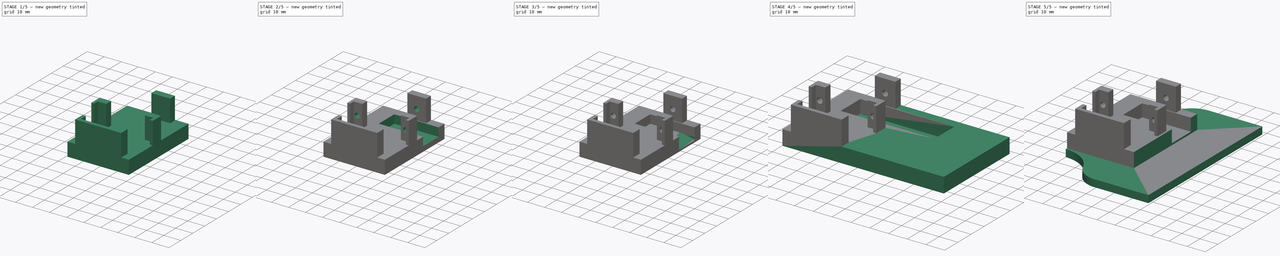
[diagram: build sequence overview — one tinted view per stage of 5, left to right]
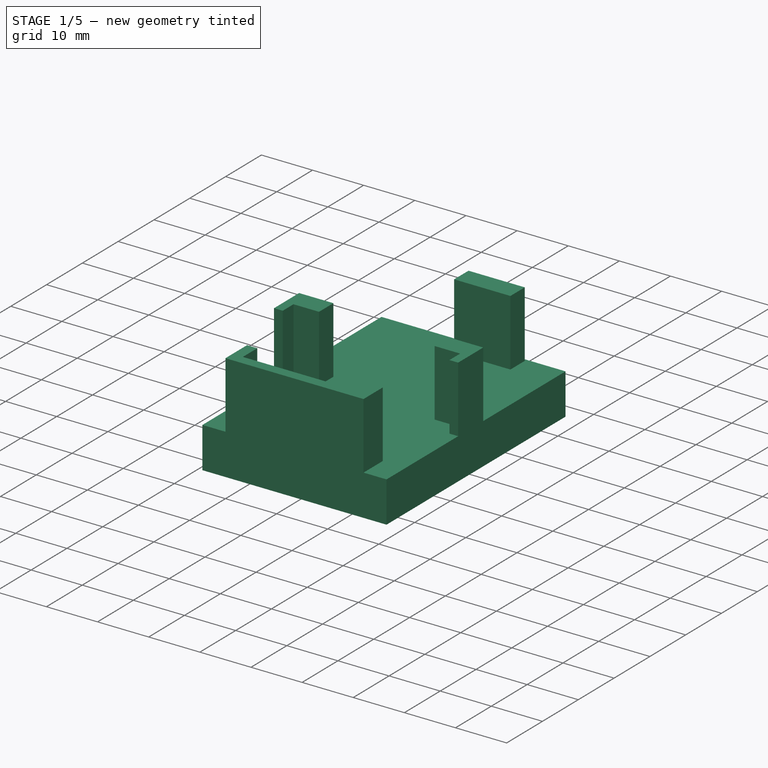
[diagram: stage 1 of 5 — iso view after this stage's code; geometry added in this stage tinted green]
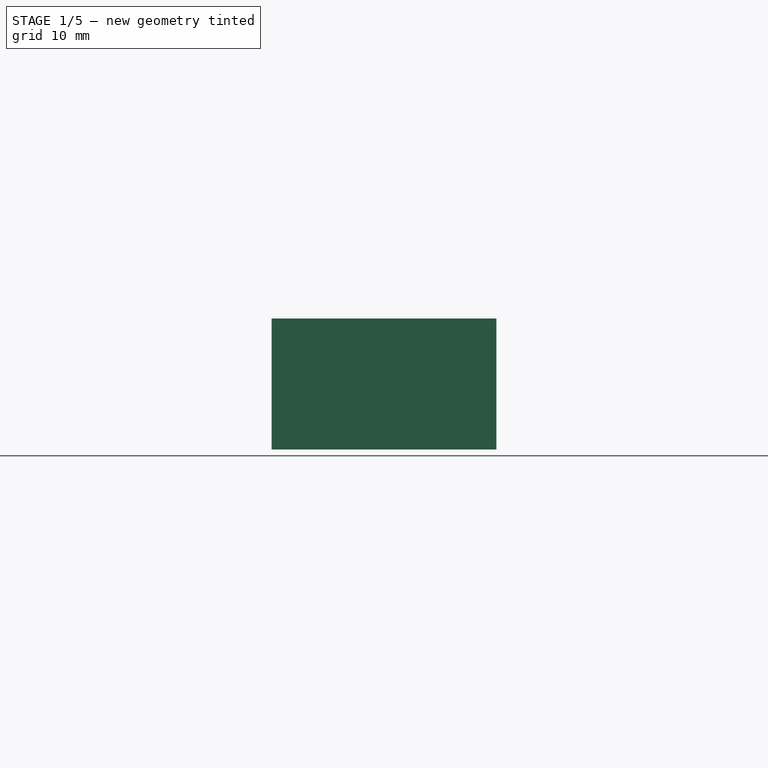
[diagram: stage 1 of 5 — front view after this stage's code; geometry added in this stage tinted green]
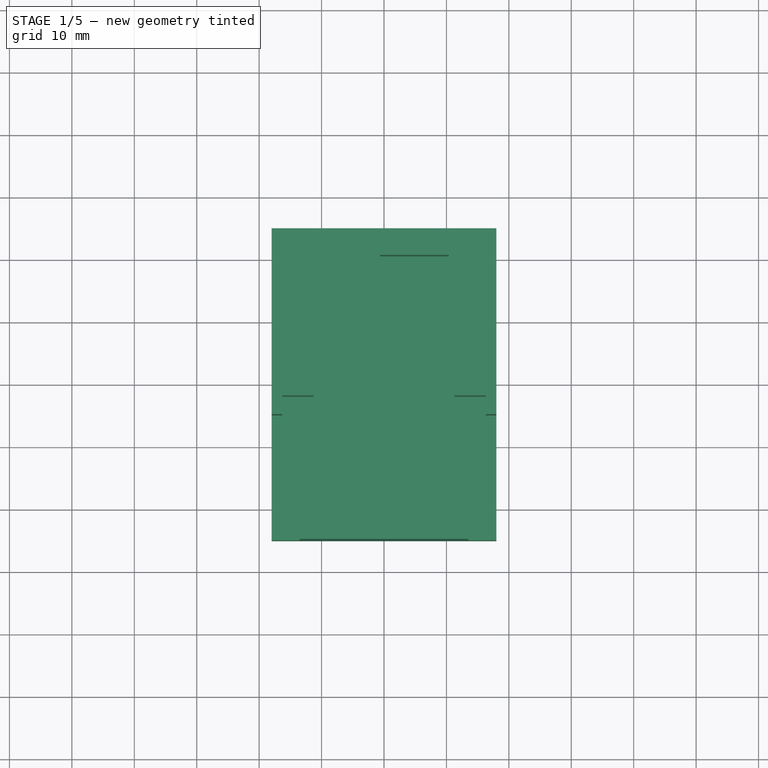
[diagram: stage 1 of 5 — top view after this stage's code; geometry added in this stage tinted green]
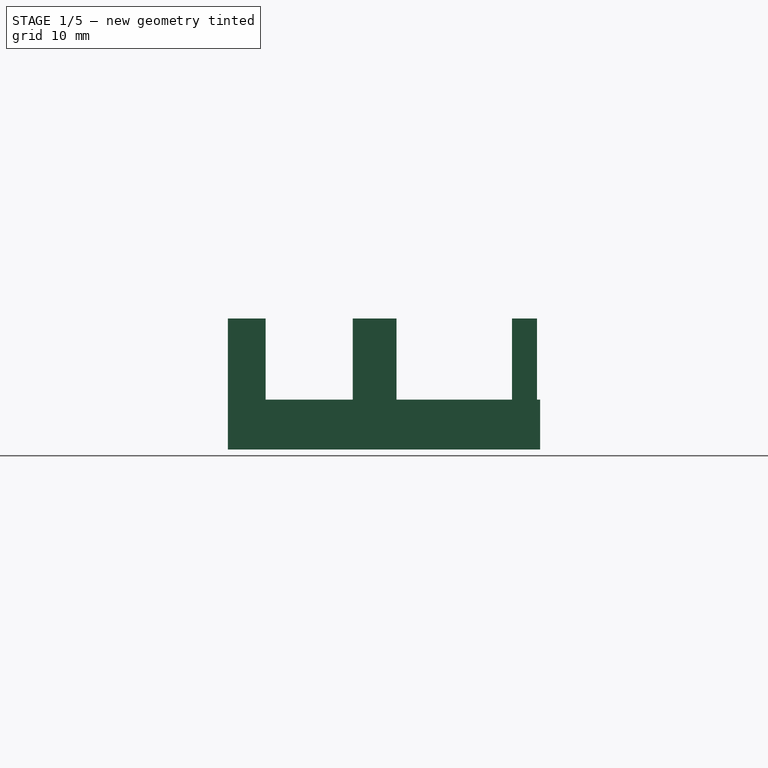
[diagram: stage 1 of 5 — right view after this stage's code; geometry added in this stage tinted green]
FCSTD DOCUMENT  (FreeCAD 0.16R6703 (Git))
Label: Platform
License: FreeArt
LicenseURL: http://artlibre.org/licence/lal
objects: Sketcher::SketchObject×13, PartDesign::Pocket×7, PartDesign::Pad×6, PartDesign::Chamfer×5, Part::Fuse×1, PartDesign::Fillet×1
note: 46 computed .brp shape members not serialized (recipe doc carries the construction recipe); baked Part::Feature solids carry a one-line shape summary decoded from their .brp

FEATURE [Sketcher::SketchObject] Sketch
  sketch-geometry (4):
    g0: LineSegment StartX=-18 StartY=25 StartZ=0 EndX=18 EndY=25 EndZ=0
    g1: LineSegment StartX=18 StartY=25 StartZ=0 EndX=18 EndY=-25 EndZ=0
    g2: LineSegment StartX=18 StartY=-25 StartZ=0 EndX=-18 EndY=-25 EndZ=0
    g3: LineSegment StartX=-18 StartY=-25 StartZ=0 EndX=-18 EndY=25 EndZ=0
  constraints (12):
    c: Coincident(g0,g1)
    c: Coincident(g1,g2)
    c: Coincident(g2,g3)
    c: Coincident(g3,g0)
    c: Horizontal(g0)
    c: Horizontal(g2)
    c: Vertical(g1)
    c: Vertical(g3)
    c: Symmetric(g2,g1,g-2)
    c: Symmetric(g0,g1,g-1)
    c: DistanceY(g1,g1) = 50
    c: DistanceX(g0,g0) = 36
FEATURE [PartDesign::Pad] Pad
  Length = 8
  Length2 = 100
  Sketch = -> Sketch
  Type = 0
FEATURE [Sketcher::SketchObject] Sketch002
  Placement = pos=(0,0,8) rot=(0,0,1;0rad)
  Support = -> Pad [Face6]
  sketch-geometry (8):
    g0: LineSegment StartX=-13.5 StartY=-25 StartZ=0 EndX=13.5 EndY=-25 EndZ=0
    g1: LineSegment StartX=13.5 StartY=-25 StartZ=0 EndX=13.5 EndY=-19.6295 EndZ=0
    g2: LineSegment StartX=13.5 StartY=-19.6295 StartZ=0 EndX=11.5 EndY=-19.6295 EndZ=0
    g3: LineSegment StartX=11.5 StartY=-19.6295 StartZ=0 EndX=11.5 EndY=-23 EndZ=0
    g4: LineSegment StartX=11.5 StartY=-23 StartZ=0 EndX=-11.5 EndY=-23 EndZ=0
    g5: LineSegment StartX=-11.5 StartY=-23 StartZ=0 EndX=-11.5 EndY=-18.9697 EndZ=0
    g6: LineSegment StartX=-11.5 StartY=-18.9697 StartZ=0 EndX=-13.5 EndY=-18.9697 EndZ=0
    g7: LineSegment StartX=-13.5 StartY=-18.9697 StartZ=0 EndX=-13.5 EndY=-25 EndZ=0
  constraints (22):
    c: Horizontal(g0)
    c: Coincident(g0,g1)
    c: Vertical(g1)
    c: Coincident(g1,g2)
    c: Coincident(g2,g3)
    c: Coincident(g3,g4)
    c: Horizontal(g4)
    c: Coincident(g4,g5)
    c: Vertical(g5)
    c: Coincident(g5,g6)
    c: Horizontal(g6)
    c: Coincident(g6,g7)
    c: Coincident(g7,g0)
    c: Vertical(g7)
    c: Vertical(g3)
    c: Symmetric(g0,g0,g-2)
    c: DistanceY(g-1,g0) = -25
    c: Horizontal(g2)
    c: DistanceX(g0,g0) = 27
    c: Equal(g6,g2)
    c: DistanceX(g2,g2) = 2
    c: Distance(g3,g0) = 2
FEATURE [PartDesign::Pad] Pad001
  Length = 13
  Length2 = 100
  Sketch = -> Sketch002
  Type = 0
FEATURE [Sketcher::SketchObject] Sketch003
  Placement = pos=(0,0,8) rot=(0,0,1;0rad)
  sketch-geometry (13):
    g0: LineSegment StartX=11.3 StartY=2 StartZ=0 EndX=18 EndY=2 EndZ=0
    g1: LineSegment StartX=18 StartY=2 StartZ=0 EndX=18 EndY=-5 EndZ=0
    g2: LineSegment StartX=18 StartY=-5 StartZ=0 EndX=16.3 EndY=-5 EndZ=0
    g3: LineSegment StartX=16.3 StartY=-5 StartZ=0 EndX=16.3 EndY=-2 EndZ=0
    g4: LineSegment StartX=16.3 StartY=-2 StartZ=0 EndX=11.3 EndY=-2 EndZ=0
    g5: LineSegment StartX=11.3 StartY=-2 StartZ=0 EndX=11.3 EndY=2 EndZ=0
    g6: LineSegment StartX=-11.3 StartY=2 StartZ=0 EndX=-18 EndY=2 EndZ=0
    g7: LineSegment StartX=-18 StartY=2 StartZ=0 EndX=-18 EndY=-5 EndZ=0
    g8: LineSegment StartX=-18 StartY=-5 StartZ=0 EndX=-16.3 EndY=-5 EndZ=0
    g9: LineSegment StartX=-16.3 StartY=-5 StartZ=0 EndX=-16.3 EndY=-2 EndZ=0
    g10: LineSegment StartX=-16.3 StartY=-2 StartZ=0 EndX=-11.3 EndY=-2 EndZ=0
    g11: LineSegment StartX=-11.3 StartY=-2 StartZ=0 EndX=-11.3 EndY=2 EndZ=0
    g12: LineSegment [constr] StartX=-21.0254 StartY=-25 StartZ=0 EndX=21.0254 EndY=-25 EndZ=0
  constraints (39):
    c: Horizontal(g0)
    c: Coincident(g0,g1)
    c: Vertical(g1)
    c: Coincident(g1,g2)
    c: Coincident(g2,g3)
    c: Vertical(g3)
    c: Coincident(g3,g4)
    c: Coincident(g4,g5)
    c: Vertical(g5)
    c: Coincident(g5,g0)
    c: Horizontal(g6)
    c: Coincident(g6,g7)
    c: Vertical(g7)
    c: Coincident(g7,g8)
    c: Coincident(g8,g9)
    c: Vertical(g9)
    c: Coincident(g9,g10)
    c: Coincident(g10,g11)
    c: Coincident(g11,g6)
    c: Vertical(g11)
    c: Horizontal(g12)
    c: DistanceY(g-1,g12) = -25
    c: Horizontal(g2)
    c: Horizontal(g4)
    c: Horizontal(g8)
    c: Horizontal(g10)
    c: Distance(g4,g12) = 23
    c: Distance(g10,g12) = 23
    c: Symmetric(g6,g0,g-2)
    c: Symmetric(g8,g2,g-2)
    c: Equal(g6,g0)
    c: Equal(g1,g7)
    c: Equal(g8,g2)
    c: Distance(g8,g2) = 32.6
    c: DistanceX(g0,g0) = 6.7
    c: DistanceY(g1,g1) = 7
    c: DistanceX(g10,g10) = 5
    c: DistanceY(g11,g11) = 4
    c: Distance(g6,g0) = 22.6
FEATURE [PartDesign::Pad] Pad002
  Length = 13
  Length2 = 100
  Placement = pos=(0,0,8) rot=(0,0,1;0rad)
  Sketch = -> Sketch003
  Type = 0
FEATURE [Sketcher::SketchObject] Sketch004
  Placement = pos=(0,0,8) rot=(0,0,1;0rad)
  Support = -> Pad001 [Face5]
  sketch-geometry (5):
    g0: LineSegment StartX=-0.6348 StartY=20.5 StartZ=0 EndX=10.3652 EndY=20.5 EndZ=0
    g1: LineSegment StartX=10.3652 StartY=20.5 StartZ=0 EndX=10.3652 EndY=24.5 EndZ=0
    g2: LineSegment StartX=10.3652 StartY=24.5 StartZ=0 EndX=-0.6348 EndY=24.5 EndZ=0
    g3: LineSegment StartX=-0.6348 StartY=24.5 StartZ=0 EndX=-0.6348 EndY=20.5 EndZ=0
    g4: LineSegment [constr] StartX=10.3652 StartY=0 StartZ=0 EndX=10.3652 EndY=24.9002 EndZ=0
  constraints (17):
    c: Coincident(g0,g1)
    c: Coincident(g1,g2)
    c: Coincident(g2,g3)
    c: Coincident(g3,g0)
    c: Horizontal(g0)
    c: Horizontal(g2)
    c: Vertical(g1)
    c: Vertical(g3)
    c: Equal(g3,g1)
    c: Equal(g0,g2)
    c: DistanceY(g-1,g0) = 20.5
    c: DistanceY(g1,g1) = 4
    c: PointOnObject(g4,g-1)
    c: Vertical(g4)
    c: DistanceX(g-2,g4) = 10.3652
    c: PointOnObject(g0,g4)
    c: DistanceX(g0,g0) = 11
FEATURE [PartDesign::Pad] Pad003
  Length = 13
  Length2 = 100
  Sketch = -> Sketch004
  Type = 0
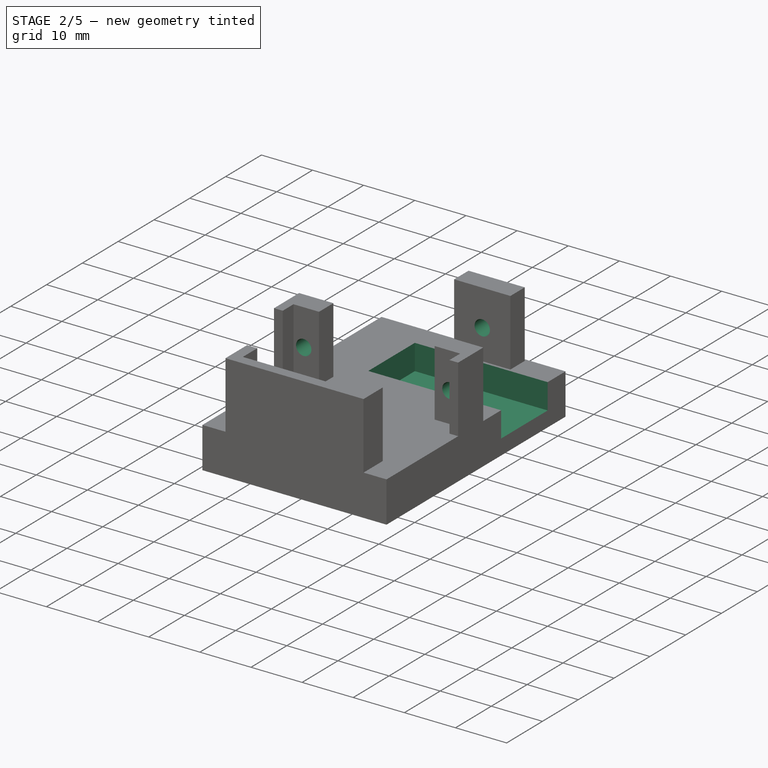
[diagram: stage 2 of 5 — iso view after this stage's code; geometry added in this stage tinted green]
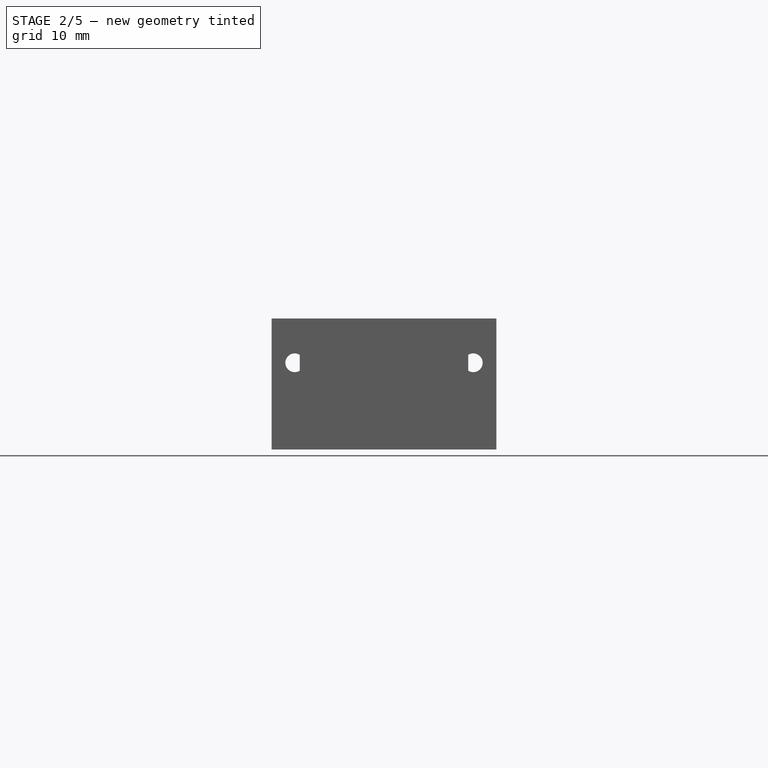
[diagram: stage 2 of 5 — front view after this stage's code; geometry added in this stage tinted green]
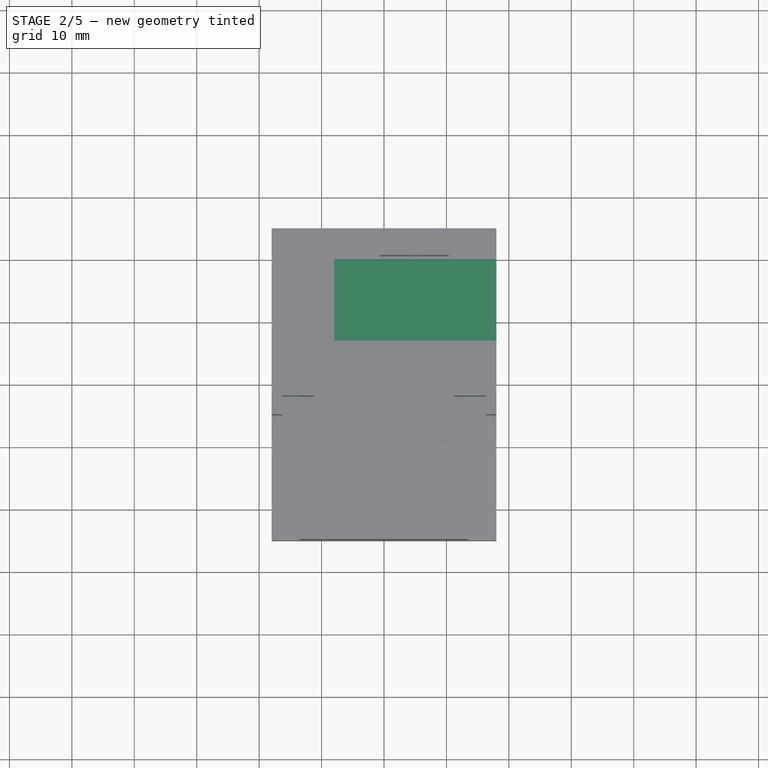
[diagram: stage 2 of 5 — top view after this stage's code; geometry added in this stage tinted green]
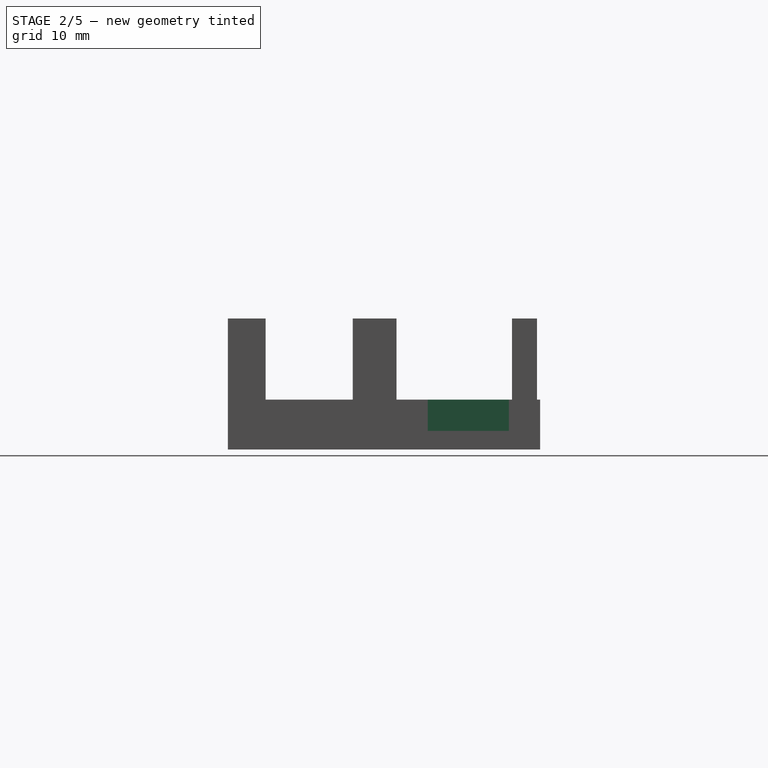
[diagram: stage 2 of 5 — right view after this stage's code; geometry added in this stage tinted green]
FEATURE [Part::Fuse] Fusion
  Base = -> Pad002
  Tool = -> Pad003
FEATURE [Sketcher::SketchObject] Sketch005
  Placement = pos=(0,0,8) rot=(0,0,1;0rad)
  Support = -> Fusion [Face3]
  sketch-geometry (4):
    g0: LineSegment StartX=-7.97752 StartY=20 StartZ=0 EndX=18 EndY=20 EndZ=0
    g1: LineSegment StartX=18 StartY=20 StartZ=0 EndX=18 EndY=7 EndZ=0
    g2: LineSegment StartX=18 StartY=7 StartZ=0 EndX=-7.97752 EndY=7 EndZ=0
    g3: LineSegment StartX=-7.97752 StartY=7 StartZ=0 EndX=-7.97752 EndY=20 EndZ=0
  constraints (13):
    c: Coincident(g0,g1)
    c: Coincident(g1,g2)
    c: Coincident(g2,g3)
    c: Coincident(g3,g0)
    c: Horizontal(g0)
    c: Horizontal(g2)
    c: Vertical(g1)
    c: Vertical(g3)
    c: Equal(g1,g3)
    c: Equal(g0,g2)
    c: DistanceY(g-1,g1) = 7
    c: Distance(g1) = 13
    c: DistanceX(g-2,g1) = 18
FEATURE [PartDesign::Pocket] Pocket
  Length = 5
  Sketch = -> Sketch005
  Type = 0
FEATURE [Sketcher::SketchObject] Sketch006
  Placement = pos=(0,2,0) rot=(0,0.707107,0.707107;3.14159rad)
  Support = -> Pocket [Face13]
  sketch-geometry (2):
    g0: Circle CenterX=-14.3 CenterY=13.9 CenterZ=0 NormalX=0 NormalY=0 NormalZ=1 Radius=1.5
    g1: Circle CenterX=14.3 CenterY=13.9 CenterZ=0 NormalX=0 NormalY=0 NormalZ=1 Radius=1.5
  constraints (6):
    c: Radius(g0) = 1.5
    c: Radius(g1) = 1.5
    c: DistanceX(g-2,g0) = -14.3
    c: DistanceX(g-2,g1) = 14.3
    c: DistanceY(g-1,g0) = 13.9
    c: DistanceY(g-1,g1) = 13.9
FEATURE [PartDesign::Pocket] Pocket001
  Length = 5
  Sketch = -> Sketch006
  Type = 0
FEATURE [Sketcher::SketchObject] Sketch007
  Placement = pos=(0,24.5,0) rot=(0,0.707107,0.707107;3.14159rad)
  Support = -> Pocket001 [Face31]
  sketch-geometry (2):
    g0: Circle CenterX=-4.85452 CenterY=13.9 CenterZ=0 NormalX=0 NormalY=0 NormalZ=1 Radius=1.5
    g1: GeomPoint [constr] X=-13.8539 Y=13.794 Z=0
  constraints (3):
    c: Radius(g0) = 1.5
    c: DistanceY(g-1,g0) = 13.9
    c: Distance(g1,g0) = 9
FEATURE [PartDesign::Pocket] Pocket002
  Length = 5
  Sketch = -> Sketch007
  Type = 0
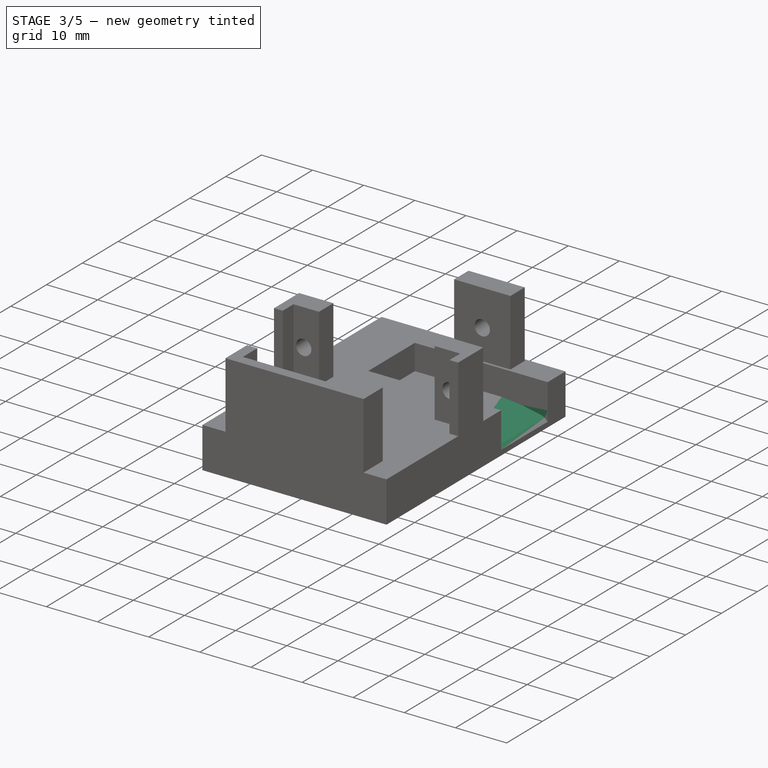
[diagram: stage 3 of 5 — iso view after this stage's code; geometry added in this stage tinted green]
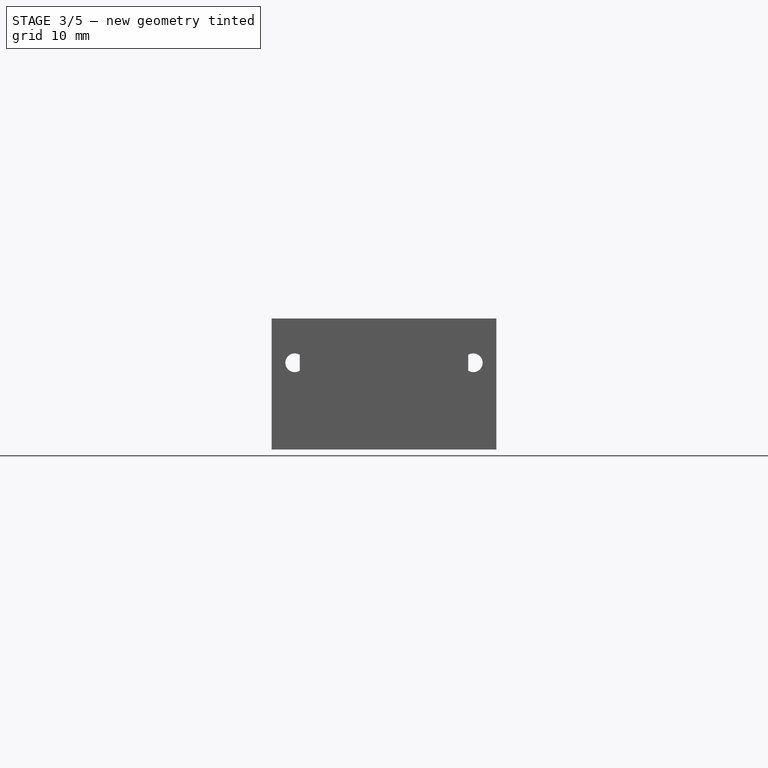
[diagram: stage 3 of 5 — front view after this stage's code; geometry added in this stage tinted green]
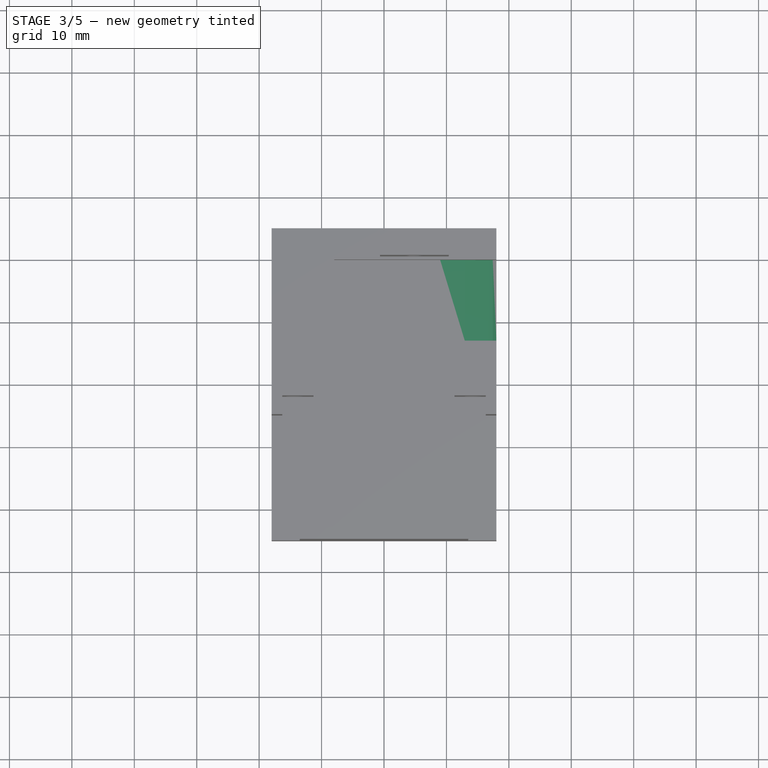
[diagram: stage 3 of 5 — top view after this stage's code; geometry added in this stage tinted green]
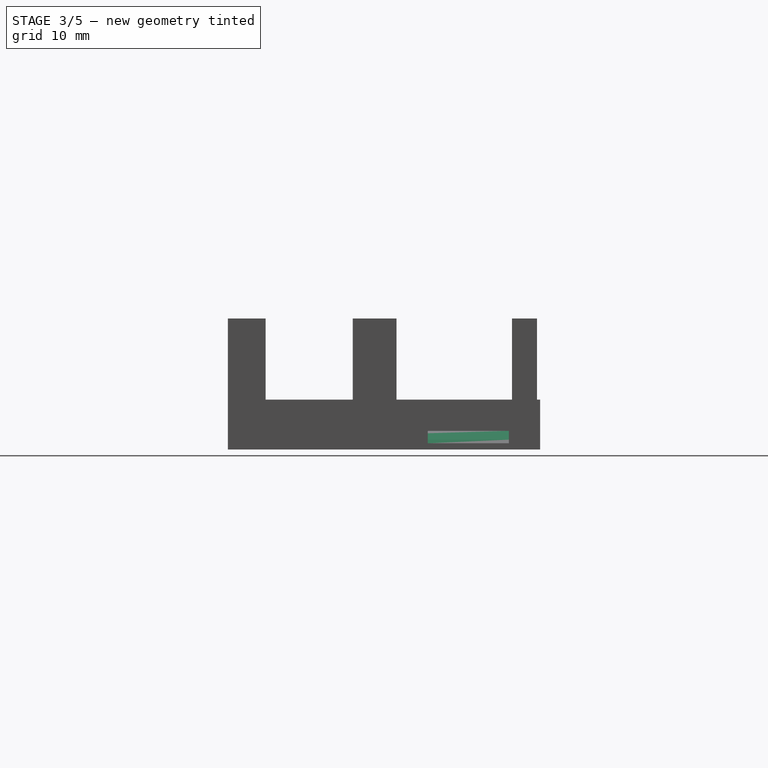
[diagram: stage 3 of 5 — right view after this stage's code; geometry added in this stage tinted green]
FEATURE [PartDesign::Chamfer] Chamfer
  Base = -> Pocket002 [Edge14]
  Size = 2
FEATURE [PartDesign::Chamfer] Chamfer001
  Base = -> Chamfer [Edge19]
  Size = 2
FEATURE [PartDesign::Chamfer] Chamfer002
  Base = -> Chamfer001 [Edge8]
  Size = 3
FEATURE [PartDesign::Chamfer] Chamfer003
  Base = -> Chamfer002 [Edge9]
  Size = 2
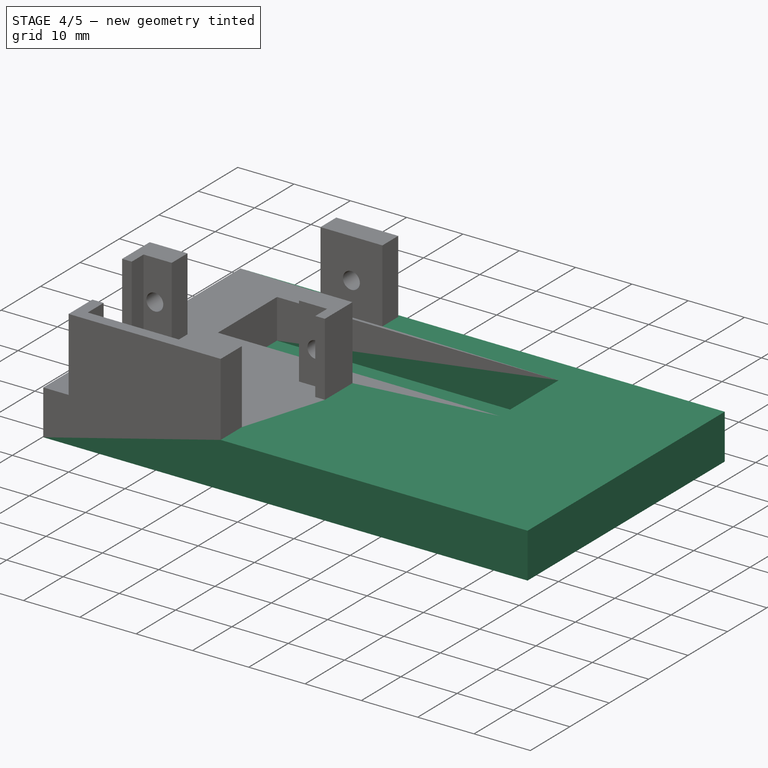
[diagram: stage 4 of 5 — iso view after this stage's code; geometry added in this stage tinted green]
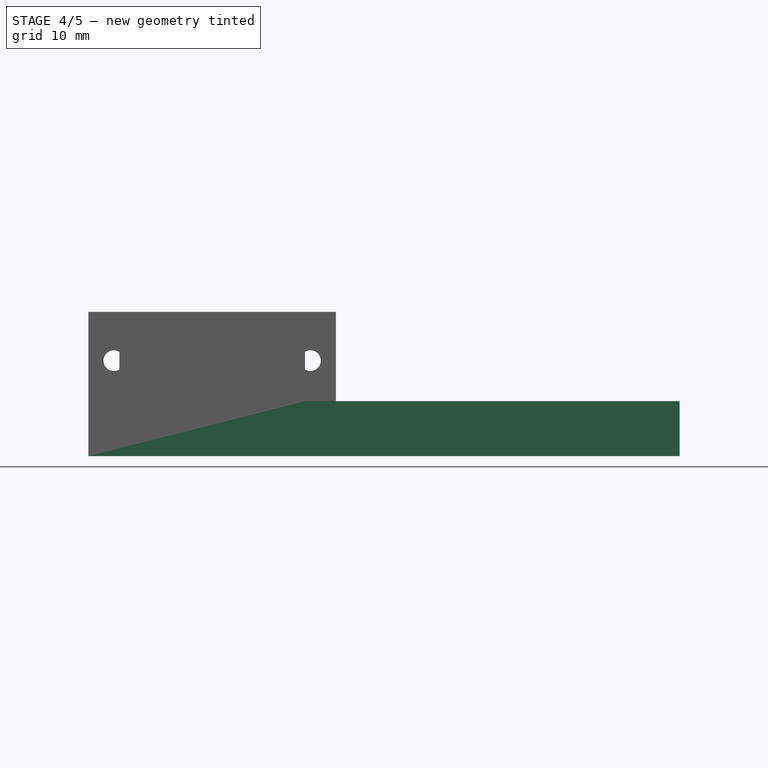
[diagram: stage 4 of 5 — front view after this stage's code; geometry added in this stage tinted green]
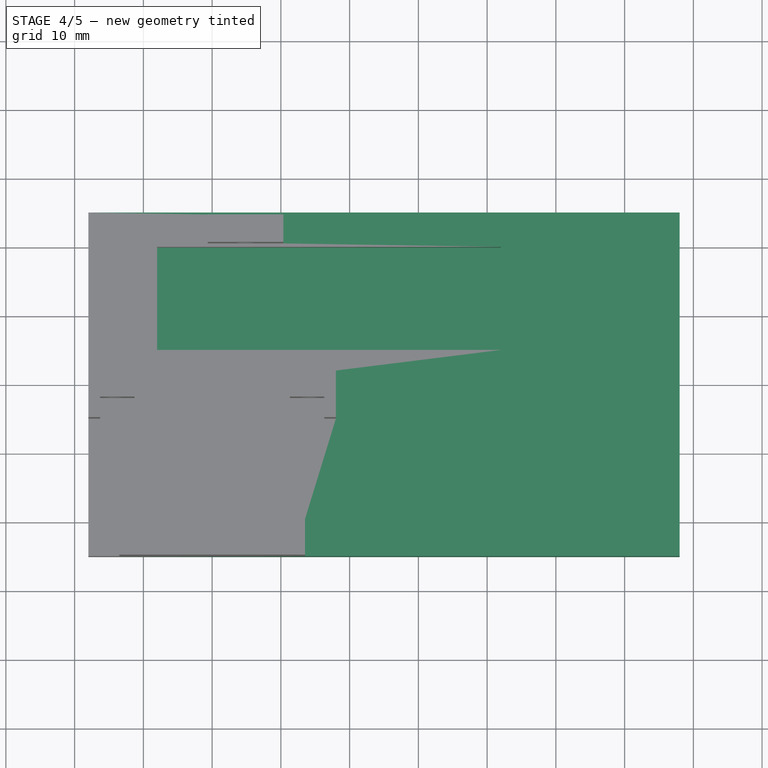
[diagram: stage 4 of 5 — top view after this stage's code; geometry added in this stage tinted green]
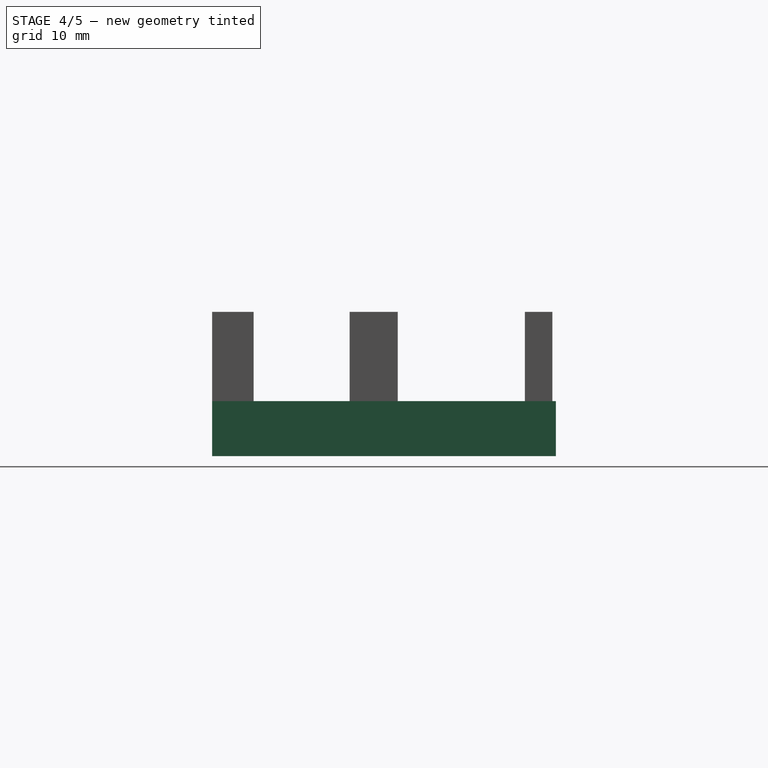
[diagram: stage 4 of 5 — right view after this stage's code; geometry added in this stage tinted green]
FEATURE [Sketcher::SketchObject] Sketch008
  Placement = pos=(0,0,3) rot=(0,0,1;0rad)
  Support = -> Chamfer003 [Face2]
  sketch-geometry (4):
    g0: LineSegment StartX=-4.4342 StartY=20 StartZ=0 EndX=18.7767 EndY=20 EndZ=0
    g1: LineSegment StartX=18.7767 StartY=20 StartZ=0 EndX=18.7767 EndY=7 EndZ=0
    g2: LineSegment StartX=18.7767 StartY=7 StartZ=0 EndX=-4.4342 EndY=7 EndZ=0
    g3: LineSegment StartX=-4.4342 StartY=7 StartZ=0 EndX=-4.4342 EndY=20 EndZ=0
  constraints (10):
    c: Coincident(g0,g1)
    c: Coincident(g1,g2)
    c: Coincident(g2,g3)
    c: Coincident(g3,g0)
    c: Horizontal(g0)
    c: Horizontal(g2)
    c: Vertical(g1)
    c: Vertical(g3)
    c: DistanceY(g-1,g1) = 7
    c: DistanceY(g1,g1) = 13
FEATURE [PartDesign::Pocket] Pocket003
  Length = 2
  Sketch = -> Sketch008
  Type = 0
FEATURE [PartDesign::Chamfer] Chamfer004
  Base = -> Pocket003 [Edge46]
  Size = 1
FEATURE [Sketcher::SketchObject] Sketch009
  Placement = pos=(18,0,0) rot=(0.57735,0.57735,0.57735;2.0944rad)
  Support = -> Chamfer004 [Face9]
  sketch-geometry (4):
    g0: LineSegment StartX=-25 StartY=8 StartZ=0 EndX=25 EndY=8 EndZ=0
    g1: LineSegment StartX=25 StartY=8 StartZ=0 EndX=25 EndY=0 EndZ=0
    g2: LineSegment StartX=25 StartY=0 StartZ=0 EndX=-25 EndY=0 EndZ=0
    g3: LineSegment StartX=-25 StartY=0 StartZ=0 EndX=-25 EndY=8 EndZ=0
  constraints (12):
    c: Coincident(g0,g1)
    c: Coincident(g1,g2)
    c: Coincident(g2,g3)
    c: Coincident(g3,g0)
    c: Horizontal(g0)
    c: Horizontal(g2)
    c: Vertical(g1)
    c: Vertical(g3)
    c: PointOnObject(g2,g-1)
    c: DistanceX(g2,g2) = 50
    c: Symmetric(g2,g1,g-2)
    c: DistanceY(g1,g1) = 8
FEATURE [PartDesign::Pad] Pad004
  Length = 50
  Length2 = 100
  Sketch = -> Sketch009
  Type = 0
FEATURE [Sketcher::SketchObject] Sketch010
  Placement = pos=(0,0,8) rot=(0,0,1;0rad)
  Support = -> Pad004 [Face2]
  sketch-geometry (4):
    g0: LineSegment StartX=-8 StartY=20 StartZ=0 EndX=42 EndY=20 EndZ=0
    g1: LineSegment StartX=42 StartY=20 StartZ=0 EndX=42 EndY=5 EndZ=0
    g2: LineSegment StartX=42 StartY=5 StartZ=0 EndX=-8 EndY=5 EndZ=0
    g3: LineSegment StartX=-8 StartY=5 StartZ=0 EndX=-8 EndY=20 EndZ=0
  constraints (12):
    c: Coincident(g0,g1)
    c: Coincident(g1,g2)
    c: Coincident(g2,g3)
    c: Coincident(g3,g0)
    c: Horizontal(g0)
    c: Horizontal(g2)
    c: Vertical(g1)
    c: Vertical(g3)
    c: DistanceY(g-1,g2) = 5
    c: DistanceX(g2,g-1) = 8
    c: DistanceX(g2,g2) = 50
    c: DistanceY(g1,g1) = 15
FEATURE [PartDesign::Pocket] Pocket004
  Length = 7
  Sketch = -> Sketch010
  Type = 0
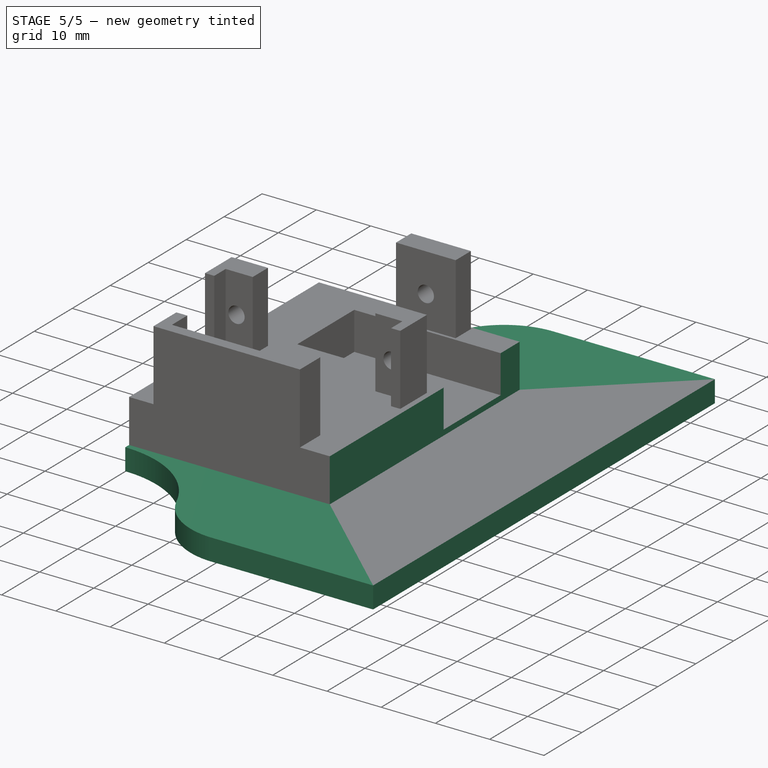
[diagram: stage 5 of 5 — iso view after this stage's code; geometry added in this stage tinted green]
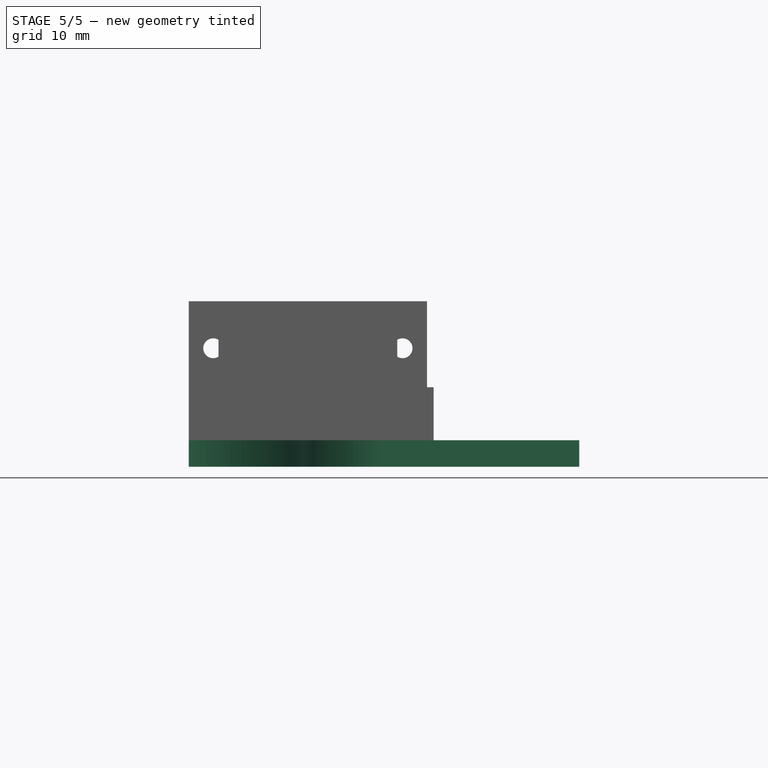
[diagram: stage 5 of 5 — front view after this stage's code; geometry added in this stage tinted green]
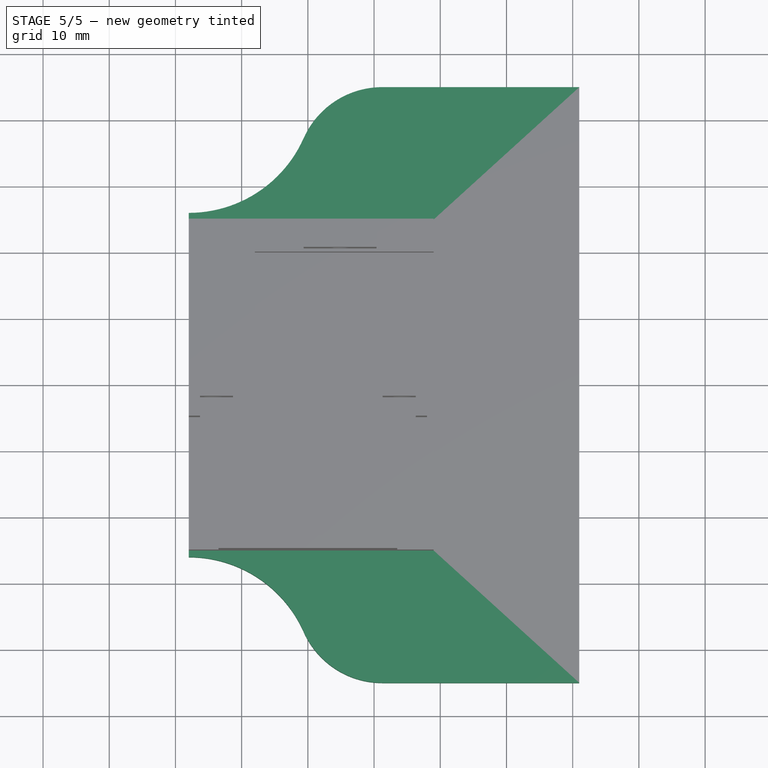
[diagram: stage 5 of 5 — top view after this stage's code; geometry added in this stage tinted green]
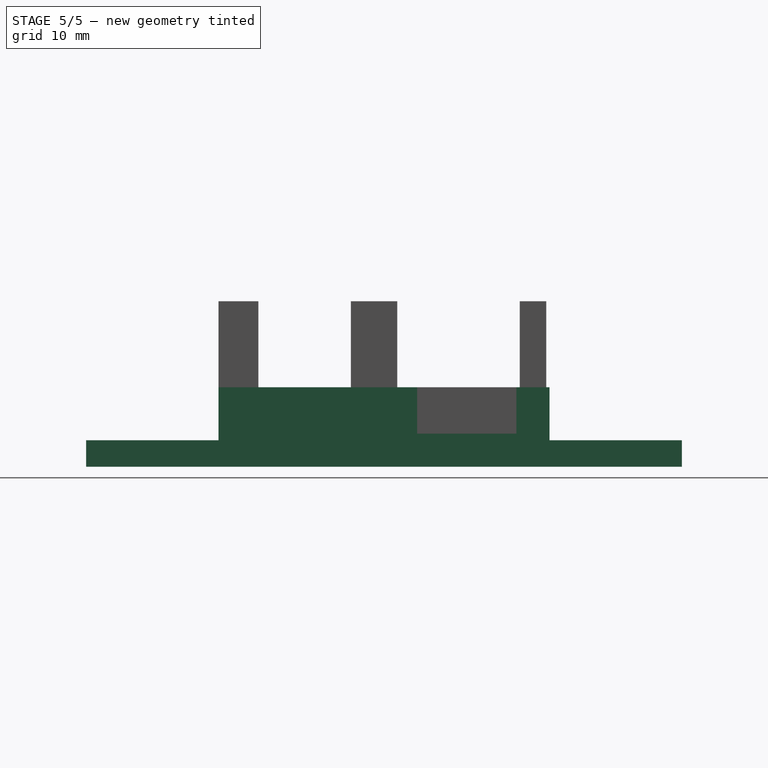
[diagram: stage 5 of 5 — right view after this stage's code; geometry added in this stage tinted green]
FEATURE [Sketcher::SketchObject] Sketch011
  Placement = pos=(0,0,8) rot=(0,0,1;0rad)
  Support = -> Pocket004 [Face2]
  sketch-geometry (4):
    g0: LineSegment StartX=19 StartY=27.6101 StartZ=0 EndX=71.4529 EndY=27.6101 EndZ=0
    g1: LineSegment StartX=71.4529 StartY=27.6101 StartZ=0 EndX=71.4529 EndY=-27.6101 EndZ=0
    g2: LineSegment StartX=71.4529 StartY=-27.6101 StartZ=0 EndX=19 EndY=-27.6101 EndZ=0
    g3: LineSegment StartX=19 StartY=-27.6101 StartZ=0 EndX=19 EndY=27.6101 EndZ=0
  constraints (10):
    c: Coincident(g0,g1)
    c: Coincident(g1,g2)
    c: Coincident(g2,g3)
    c: Coincident(g3,g0)
    c: Horizontal(g0)
    c: Horizontal(g2)
    c: Vertical(g1)
    c: Vertical(g3)
    c: Distance(g-1,g3) = 19
    c: Symmetric(g2,g0,g-1)
FEATURE [PartDesign::Pocket] Pocket005
  Length = 8
  Sketch = -> Sketch011
  Type = 0
FEATURE [Sketcher::SketchObject] Sketch012
  Placement = pos=(0,0,0) rot=(1,0,0;3.14159rad)
  Support = -> Pocket005 [Face32]
  sketch-geometry (4):
    g0: LineSegment StartX=-18 StartY=-45 StartZ=0 EndX=41 EndY=-45 EndZ=0
    g1: LineSegment StartX=41 StartY=-45 StartZ=0 EndX=41 EndY=45 EndZ=0
    g2: LineSegment StartX=41 StartY=45 StartZ=0 EndX=-18 EndY=45 EndZ=0
    g3: LineSegment StartX=-18 StartY=45 StartZ=0 EndX=-18 EndY=-45 EndZ=0
  constraints (12):
    c: Coincident(g0,g1)
    c: Coincident(g1,g2)
    c: Coincident(g2,g3)
    c: Coincident(g3,g0)
    c: Horizontal(g0)
    c: Horizontal(g2)
    c: Vertical(g1)
    c: Vertical(g3)
    c: DistanceY(g1,g1) = 90
    c: Symmetric(g2,g0,g-1)
    c: Distance(g-1,g3) = 18
    c: Distance(g-1,g1) = 41
FEATURE [PartDesign::Pad] Pad005
  Length = 4
  Length2 = 100
  Sketch = -> Sketch012
  Type = 0
FEATURE [Sketcher::SketchObject] Sketch013
  Support = -> Pad005 [Face30]
  sketch-geometry (2):
    g0: Circle CenterX=-18 CenterY=45 CenterZ=0 NormalX=0 NormalY=0 NormalZ=1 Radius=19
    g1: Circle CenterX=-18 CenterY=-45 CenterZ=0 NormalX=0 NormalY=0 NormalZ=1 Radius=19
  constraints (6):
    c: DistanceX(g0,g-1) = 18
    c: DistanceY(g-1,g0) = 45
    c: Radius(g0) = 19
    c: DistanceX(g1,g-1) = 18
    c: DistanceY(g1,g-1) = 45
    c: Radius(g1) = 19
FEATURE [PartDesign::Pocket] Pocket006
  Length = 5
  Sketch = -> Sketch013
  Type = 1
FEATURE [PartDesign::Fillet] Fillet
  Base = -> Pocket006 [Edge118,Edge112]
  Radius = 13
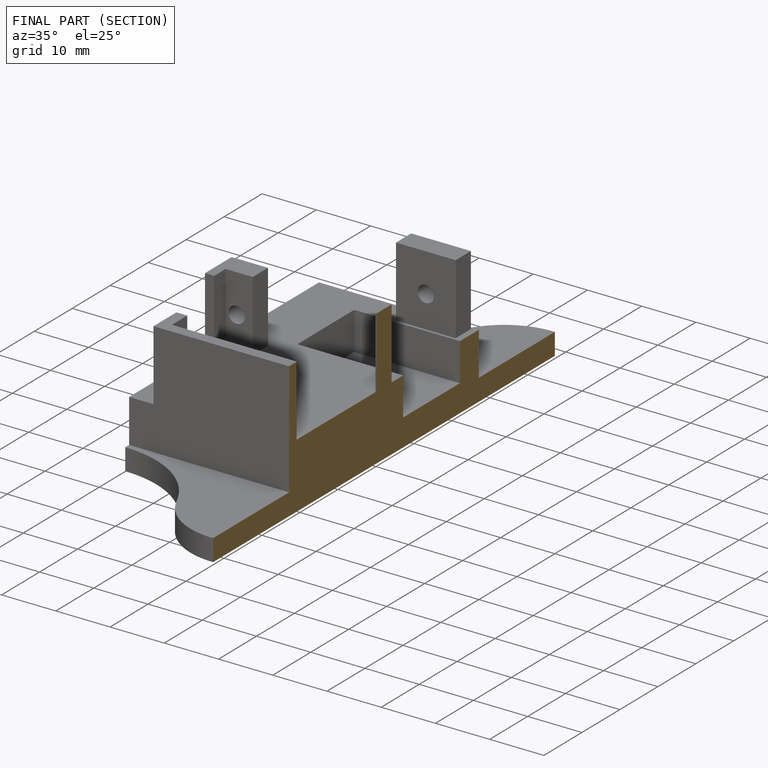
[diagram: finished part — half-section view (interior)]
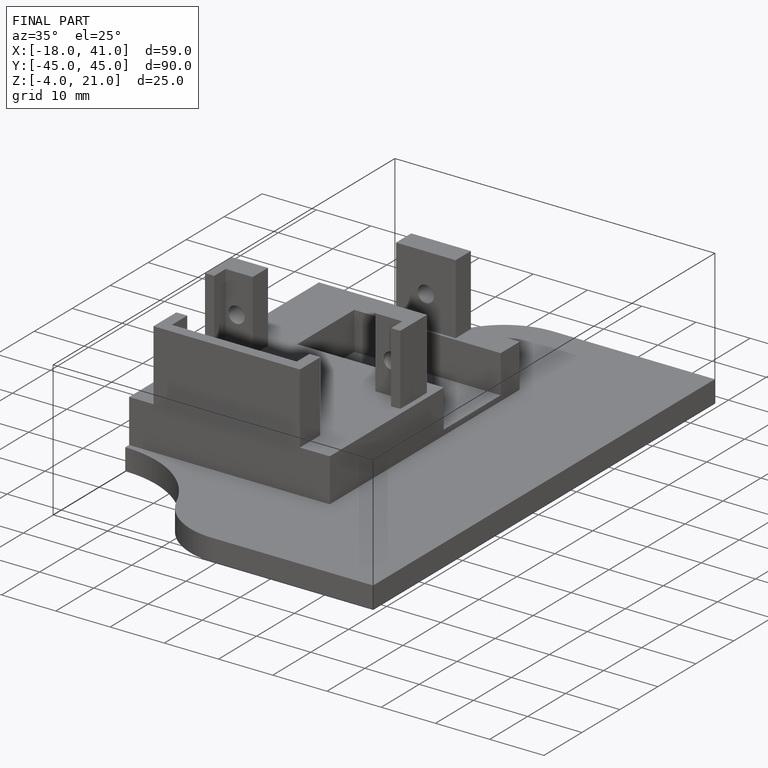
[diagram: finished part — iso view with bounding-box wireframe]
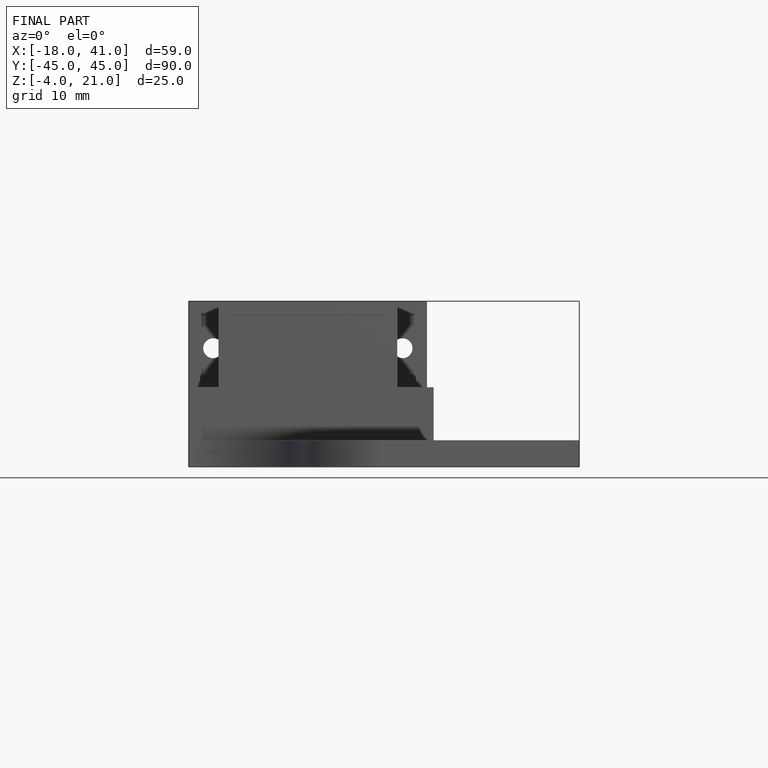
[diagram: finished part — front view with bounding-box wireframe]
